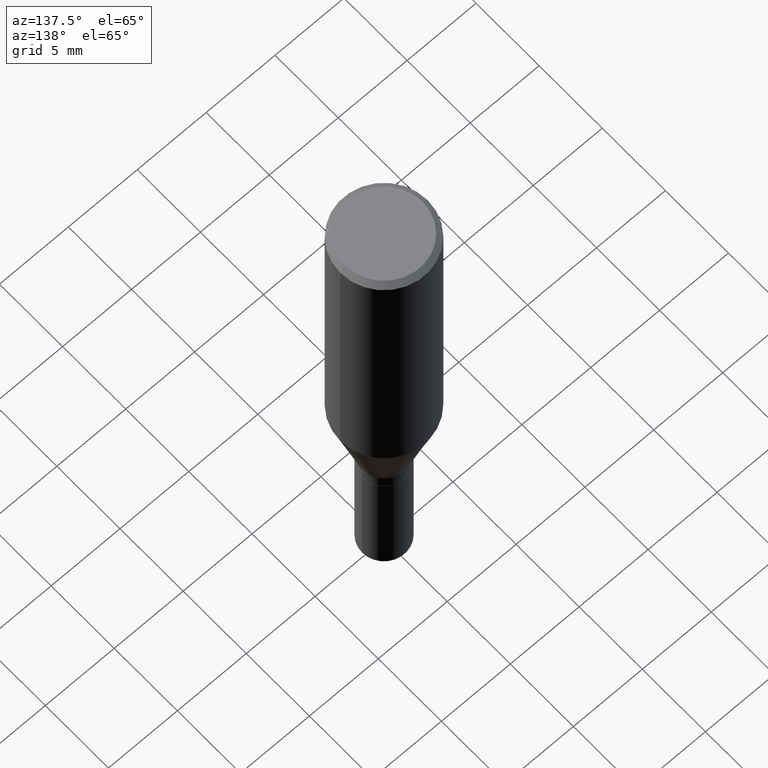
[diagram: clean part render]
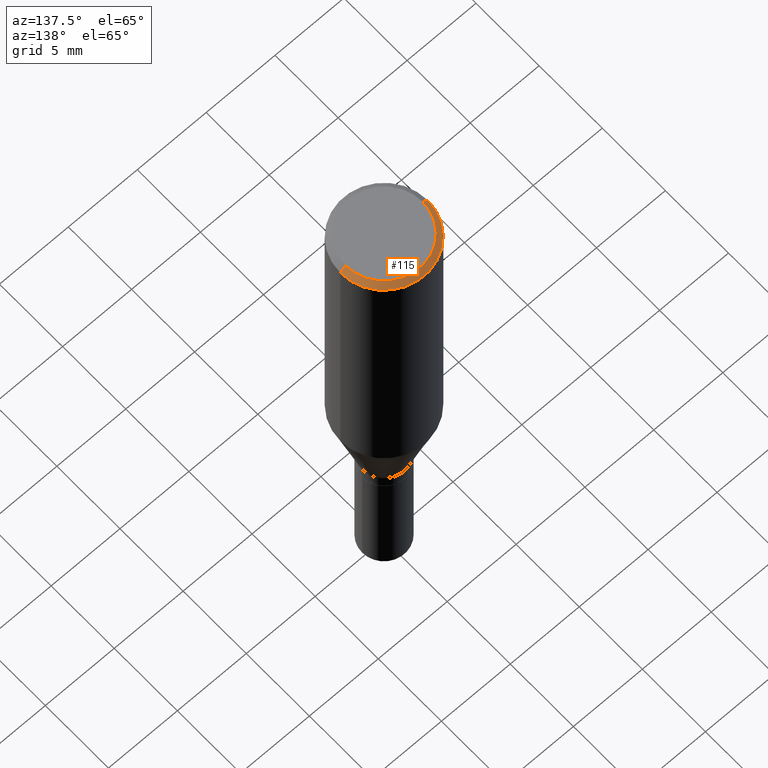
[diagram: same view with one face highlighted and labeled with its STEP entity id]
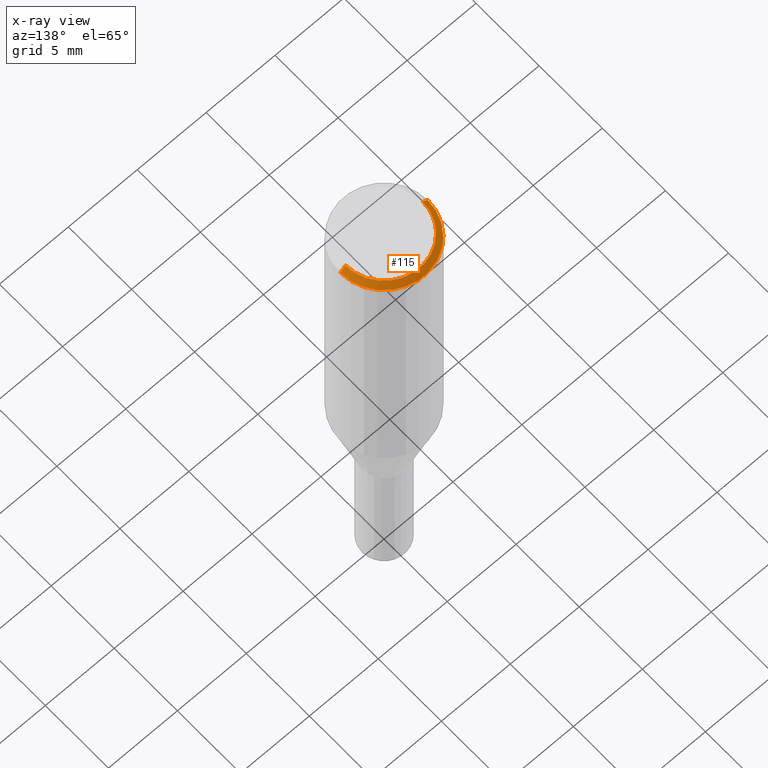
[diagram: x-ray of the same camera — body ghosted, the highlighted face saturated]
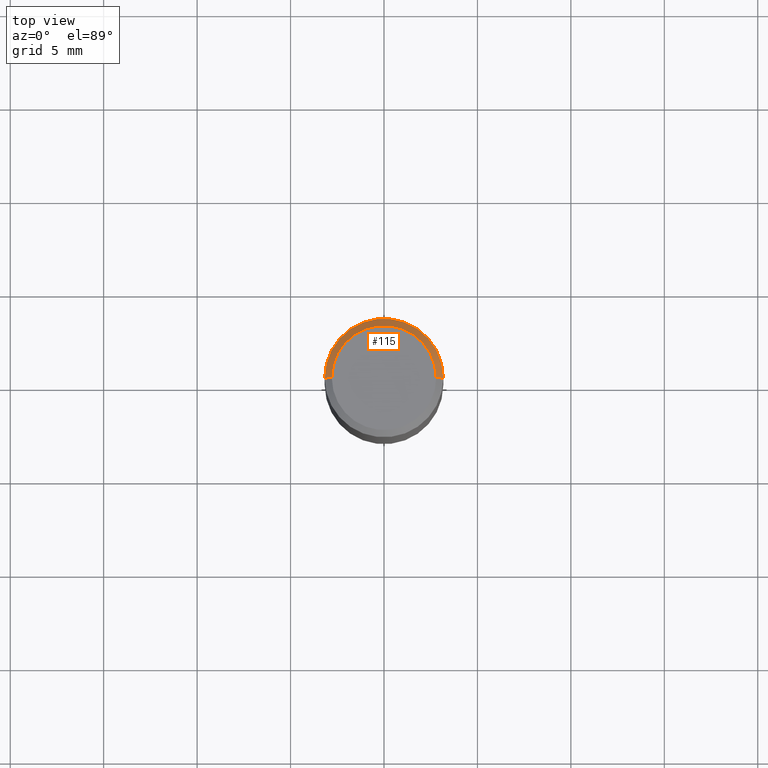
[diagram: same view with one face highlighted and labeled with its STEP entity id]
A machine part, auxiliary view. The second image highlights one B-rep face of the part: STEP entity #115.
The next image is the same camera in x-ray: the body ghosted, the highlighted face saturated — about 0% of this face is hidden behind the body in this view.
A second angle (top view) of the same face is appended — the face is thin or edge-on in the first view.
In plain terms, the highlighted conical surface has half-angle 45 deg.
Its self-contained STEP definition (entity closure, byte-faithful):
#66 = DIRECTION ( 'NONE',  ( -1.000000000000000000, 6.982962677686266711E-15, 0.000000000000000000 ) ) ;
#97 = CARTESIAN_POINT ( 'NONE',  ( -0.1250000000000000000, -6.266825026379897209E-16, -0.01499999999999999944 ) ) ;
#114 = DIRECTION ( 'NONE',  ( 2.445468806185136597E-29, -3.491481338843145583E-15, -1.000000000000000000 ) ) ;
#115 = ADVANCED_FACE ( 'NONE', ( #339 ), #335, .T. ) ;
#119 = DIRECTION ( 'NONE',  ( 0.7071067811865475727, -7.319954787623256045E-15, -0.7071067811865474617 ) ) ;
#120 = EDGE_CURVE ( 'NONE', #342, #136, #190, .T. ) ;
#135 = EDGE_CURVE ( 'NONE', #136, #404, #312, .T. ) ;
#136 = VERTEX_POINT ( 'NONE', #141 ) ;
#141 = CARTESIAN_POINT ( 'NONE',  ( -0.1100000000000000006, 7.943120045868128186E-16, -7.674416657726847932E-18 ) ) ;
#143 = ORIENTED_EDGE ( 'NONE', *, *, #120, .F. ) ;
#159 = CARTESIAN_POINT ( 'NONE',  ( 3.668203209277705088E-31, -5.237222008264718399E-17, -0.01499999999999999944 ) ) ;
#167 = ORIENTED_EDGE ( 'NONE', *, *, #203, .T. ) ;
#171 = CIRCLE ( 'NONE', #457, 0.1250000000000000000 ) ;
#172 = EDGE_CURVE ( 'NONE', #342, #448, #237, .T. ) ;
#177 = VECTOR ( 'NONE', #119, 39.37007874015748143 ) ;
#190 = CIRCLE ( 'NONE', #278, 0.1100000000000000006 ) ;
#194 = DIRECTION ( 'NONE',  ( 1.000000000000000000, -6.982962677686266711E-15, 0.000000000000000000 ) ) ;
#203 = EDGE_CURVE ( 'NONE', #448, #404, #171, .T. ) ;
#211 = DIRECTION ( 'NONE',  ( -0.7071067811865475727, 2.468850131082257455E-15, -0.7071067811865474617 ) ) ;
#215 = EDGE_LOOP ( 'NONE', ( #143, #453, #167, #338 ) ) ;
#234 = CARTESIAN_POINT ( 'NONE',  ( 0.1100000000000000006, -8.322946247794786836E-16, -7.674416657715788472E-18 ) ) ;
#237 = LINE ( 'NONE', #391, #177 ) ;
#248 = CARTESIAN_POINT ( 'NONE',  ( 0.1250000000000000000, -9.252425547934304180E-16, -0.01499999999999999944 ) ) ;
#266 = CARTESIAN_POINT ( 'NONE',  ( 1.876754654212523840E-46, -2.679508254694119990E-32, -7.674416657721384454E-18 ) ) ;
#278 = AXIS2_PLACEMENT_3D ( 'NONE', #266, #441, #409 ) ;
#283 = DIRECTION ( 'NONE',  ( -2.445468806185136597E-29, 3.491481338843145583E-15, 1.000000000000000000 ) ) ;
#312 = LINE ( 'NONE', #420, #318 ) ;
#318 = VECTOR ( 'NONE', #211, 39.37007874015748143 ) ;
#335 = CONICAL_SURFACE ( 'NONE', #423, 0.1250000000000000000, 0.7853981633974483900 ) ;
#338 = ORIENTED_EDGE ( 'NONE', *, *, #135, .F. ) ;
#339 = FACE_OUTER_BOUND ( 'NONE', #215, .T. ) ;
#342 = VERTEX_POINT ( 'NONE', #234 ) ;
#391 = CARTESIAN_POINT ( 'NONE',  ( 0.1250000000000000000, -9.099344698040885245E-16, -0.01499999999999999944 ) ) ;
#404 = VERTEX_POINT ( 'NONE', #97 ) ;
#405 = CARTESIAN_POINT ( 'NONE',  ( 3.668203209277705088E-31, -5.237222008264718399E-17, -0.01499999999999999944 ) ) ;
#409 = DIRECTION ( 'NONE',  ( 1.000000000000000000, -6.982962677686266711E-15, 4.876001053725558154E-29 ) ) ;
#420 = CARTESIAN_POINT ( 'NONE',  ( -0.1250000000000000000, 8.204981146281362596E-16, -0.01499999999999999944 ) ) ;
#423 = AXIS2_PLACEMENT_3D ( 'NONE', #405, #114, #66 ) ;
#441 = DIRECTION ( 'NONE',  ( -2.445468806185136597E-29, 3.491481338843145583E-15, 1.000000000000000000 ) ) ;
#448 = VERTEX_POINT ( 'NONE', #248 ) ;
#453 = ORIENTED_EDGE ( 'NONE', *, *, #172, .T. ) ;
#457 = AXIS2_PLACEMENT_3D ( 'NONE', #159, #283, #194 ) ;